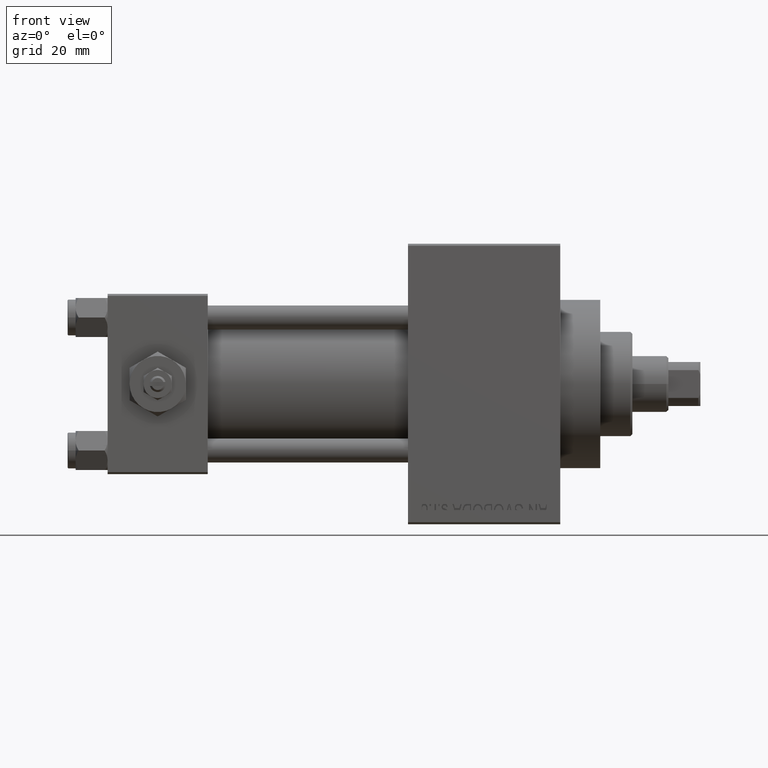
[diagram: clean part render]
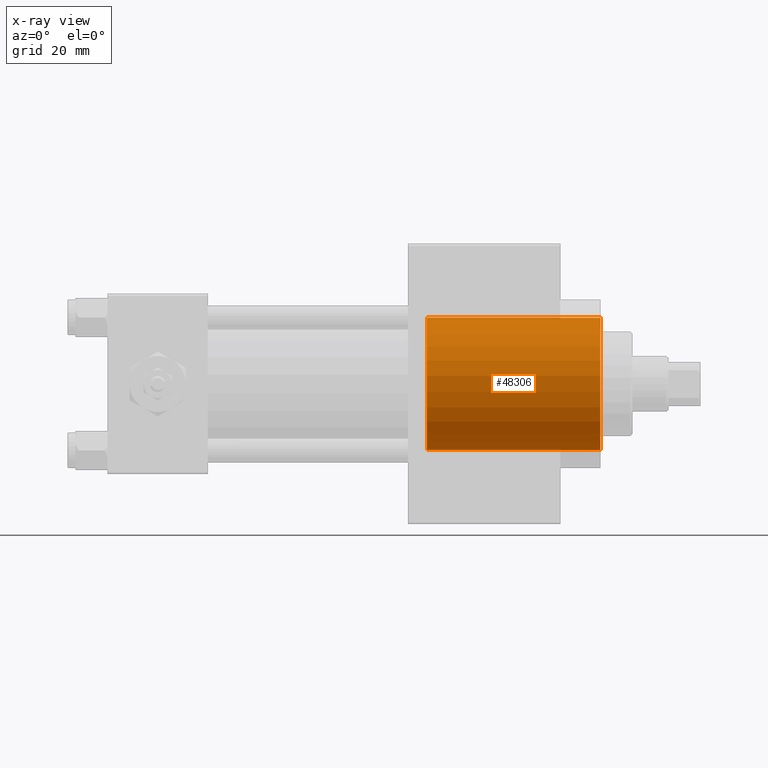
[diagram: x-ray — body ghosted, one internal face saturated and labeled with its STEP entity id]
A machine part, front view, then the same camera in x-ray: the body is ghosted and one INTERNAL B-rep face — a face not visible from any outside direction — is saturated and labeled: STEP entity #48306.
In plain terms, the highlighted cylindrical surface (partial cylindrical patch) has radius 16.5 mm, axis along (1, 0, 0).
Its self-contained STEP definition (entity closure, byte-faithful):
#27 = CARTESIAN_POINT ( 'NONE',  ( 79.74000000000000909, 0.000000000000000000, 0.000000000000000000 ) ) ;
#3107 = CARTESIAN_POINT ( 'NONE',  ( 123.0000000000000142, 0.000000000000000000, 0.000000000000000000 ) ) ;
#4206 = DIRECTION ( 'NONE',  ( 0.000000000000000000, 0.000000000000000000, -1.000000000000000000 ) ) ;
#4894 = CIRCLE ( 'NONE', #15076, 16.50000000000000000 ) ;
#4925 = EDGE_CURVE ( 'NONE', #32980, #16426, #4894, .T. ) ;
#5815 = VERTEX_POINT ( 'NONE', #18587 ) ;
#7880 = DIRECTION ( 'NONE',  ( 1.000000000000000000, -0.000000000000000000, -0.000000000000000000 ) ) ;
#7968 = EDGE_LOOP ( 'NONE', ( #37764, #34358, #27760, #8576 ) ) ;
#8576 = ORIENTED_EDGE ( 'NONE', *, *, #10147, .F. ) ;
#10008 = VERTEX_POINT ( 'NONE', #16403 ) ;
#10147 = EDGE_CURVE ( 'NONE', #10008, #16426, #47359, .T. ) ;
#10735 = DIRECTION ( 'NONE',  ( 0.000000000000000000, 0.000000000000000000, -1.000000000000000000 ) ) ;
#15054 = AXIS2_PLACEMENT_3D ( 'NONE', #27, #7880, #4206 ) ;
#15076 = AXIS2_PLACEMENT_3D ( 'NONE', #3107, #36774, #10735 ) ;
#15744 = DIRECTION ( 'NONE',  ( 1.000000000000000000, 0.000000000000000000, 0.000000000000000000 ) ) ;
#16403 = CARTESIAN_POINT ( 'NONE',  ( 79.74000000000000909, 0.000000000000000000, -16.50000000000000000 ) ) ;
#16426 = VERTEX_POINT ( 'NONE', #17345 ) ;
#17241 = VECTOR ( 'NONE', #39976, 1000.000000000000000 ) ;
#17345 = CARTESIAN_POINT ( 'NONE',  ( 123.0000000000000142, 0.000000000000000000, -16.50000000000000000 ) ) ;
#18587 = CARTESIAN_POINT ( 'NONE',  ( 79.74000000000000909, 2.020667218593133100E-15, 16.50000000000000000 ) ) ;
#19901 = CARTESIAN_POINT ( 'NONE',  ( 79.74000000000000909, 2.020667218593133100E-15, 16.50000000000000000 ) ) ;
#22391 = CYLINDRICAL_SURFACE ( 'NONE', #15054, 16.50000000000000000 ) ;
#23348 = CARTESIAN_POINT ( 'NONE',  ( 79.74000000000000909, 0.000000000000000000, 0.000000000000000000 ) ) ;
#24984 = CARTESIAN_POINT ( 'NONE',  ( 79.74000000000000909, 0.000000000000000000, -16.50000000000000000 ) ) ;
#27760 = ORIENTED_EDGE ( 'NONE', *, *, #4925, .T. ) ;
#28428 = VECTOR ( 'NONE', #31211, 1000.000000000000000 ) ;
#30266 = FACE_OUTER_BOUND ( 'NONE', #7968, .T. ) ;
#31211 = DIRECTION ( 'NONE',  ( 1.000000000000000000, -0.000000000000000000, -0.000000000000000000 ) ) ;
#32980 = VERTEX_POINT ( 'NONE', #34629 ) ;
#33910 = CIRCLE ( 'NONE', #45683, 16.50000000000000000 ) ;
#34358 = ORIENTED_EDGE ( 'NONE', *, *, #45269, .T. ) ;
#34629 = CARTESIAN_POINT ( 'NONE',  ( 123.0000000000000142, 2.020667218593133100E-15, 16.50000000000000000 ) ) ;
#36774 = DIRECTION ( 'NONE',  ( 1.000000000000000000, 0.000000000000000000, 0.000000000000000000 ) ) ;
#37764 = ORIENTED_EDGE ( 'NONE', *, *, #45089, .F. ) ;
#38580 = LINE ( 'NONE', #19901, #28428 ) ;
#39976 = DIRECTION ( 'NONE',  ( 1.000000000000000000, -0.000000000000000000, -0.000000000000000000 ) ) ;
#45089 = EDGE_CURVE ( 'NONE', #5815, #10008, #33910, .T. ) ;
#45230 = DIRECTION ( 'NONE',  ( 0.000000000000000000, 0.000000000000000000, -1.000000000000000000 ) ) ;
#45269 = EDGE_CURVE ( 'NONE', #5815, #32980, #38580, .T. ) ;
#45683 = AXIS2_PLACEMENT_3D ( 'NONE', #23348, #15744, #45230 ) ;
#47359 = LINE ( 'NONE', #24984, #17241 ) ;
#48306 = ADVANCED_FACE ( 'NONE', ( #30266 ), #22391, .F. ) ;